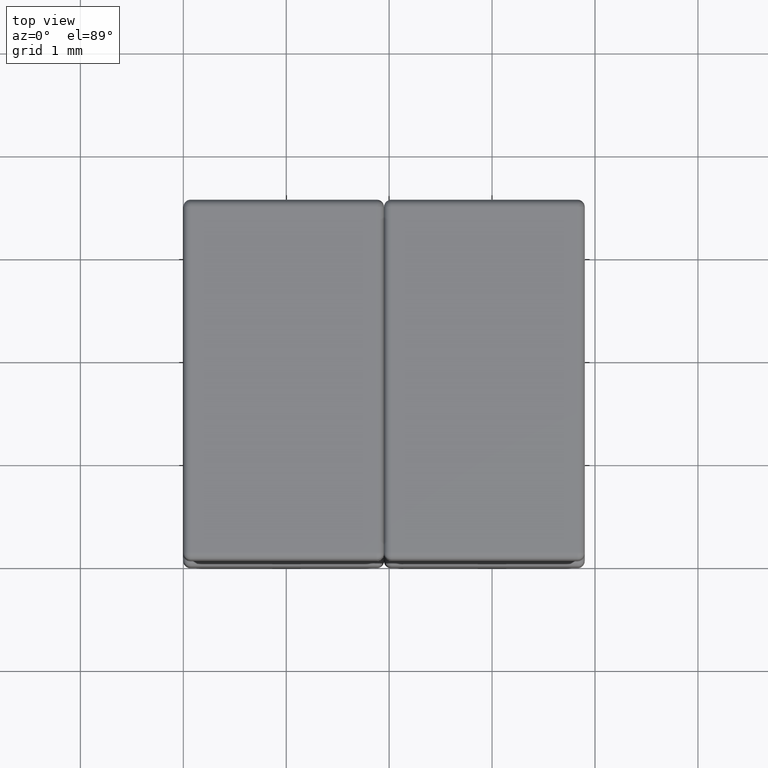
[diagram: clean part render]
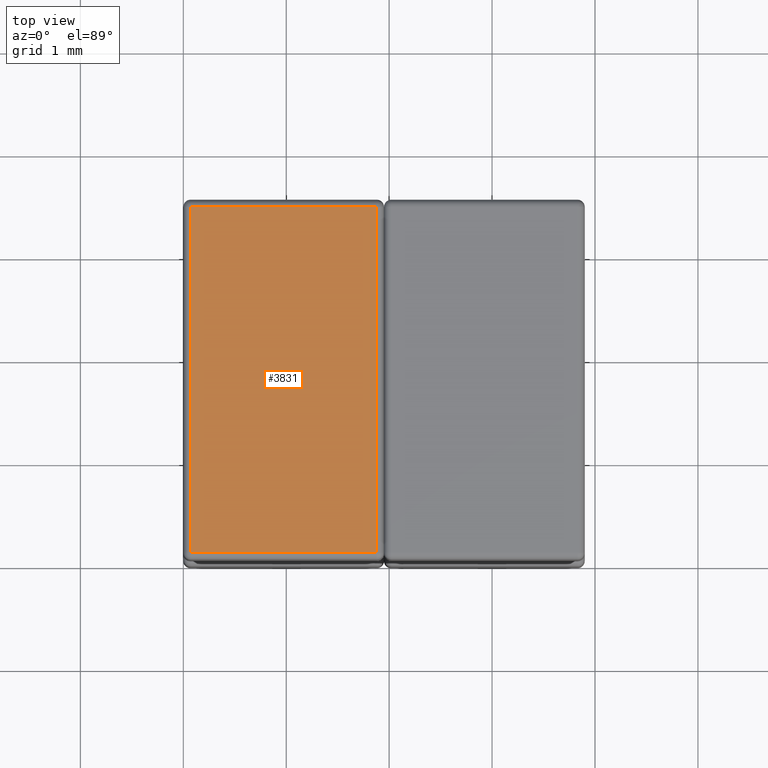
[diagram: same view with one face highlighted and labeled with its STEP entity id]
A machine part, top view. The second image highlights one B-rep face of the part: STEP entity #3831.
In plain terms, the highlighted planar face has unit normal (0, 0, -1).
Its self-contained STEP definition (entity closure, byte-faithful):
#84 = DIRECTION ( 'NONE',  ( 0.000000000000000000, 0.000000000000000000, -1.000000000000000000 ) ) ;
#129 = DIRECTION ( 'NONE',  ( 1.858632295689436102E-16, -1.000000000000000000, 0.000000000000000000 ) ) ;
#287 = AXIS2_PLACEMENT_3D ( 'NONE', #2720, #84, #868 ) ;
#469 = CARTESIAN_POINT ( 'NONE',  ( 1.949999999999999734, 0.07000000000000000666, 0.000000000000000000 ) ) ;
#510 = FACE_OUTER_BOUND ( 'NONE', #2864, .T. ) ;
#868 = DIRECTION ( 'NONE',  ( -1.000000000000000000, 0.000000000000000000, -0.000000000000000000 ) ) ;
#970 = VERTEX_POINT ( 'NONE', #2879 ) ;
#1831 = ORIENTED_EDGE ( 'NONE', *, *, #4821, .T. ) ;
#2029 = VECTOR ( 'NONE', #129, 1000.000000000000000 ) ;
#2317 = CARTESIAN_POINT ( 'NONE',  ( 1.879999999999999227, 3.429999999999999716, 0.000000000000000000 ) ) ;
#2720 = CARTESIAN_POINT ( 'NONE',  ( 0.000000000000000000, 0.000000000000000000, 0.000000000000000000 ) ) ;
#2864 = EDGE_LOOP ( 'NONE', ( #4407, #1831, #3794, #6740 ) ) ;
#2879 = CARTESIAN_POINT ( 'NONE',  ( 0.06999999999999999278, 0.07000000000000000666, 0.000000000000000000 ) ) ;
#3190 = DIRECTION ( 'NONE',  ( 1.000000000000000000, 0.000000000000000000, 0.000000000000000000 ) ) ;
#3649 = EDGE_CURVE ( 'NONE', #8468, #4921, #4444, .T. ) ;
#3794 = ORIENTED_EDGE ( 'NONE', *, *, #6920, .T. ) ;
#3827 = EDGE_CURVE ( 'NONE', #970, #8468, #6752, .T. ) ;
#3831 = ADVANCED_FACE ( 'NONE', ( #510 ), #5958, .F. ) ;
#4121 = VECTOR ( 'NONE', #5786, 1000.000000000000000 ) ;
#4308 = LINE ( 'NONE', #6224, #7577 ) ;
#4407 = ORIENTED_EDGE ( 'NONE', *, *, #3649, .T. ) ;
#4444 = LINE ( 'NONE', #8473, #4121 ) ;
#4821 = EDGE_CURVE ( 'NONE', #4921, #5249, #4308, .T. ) ;
#4921 = VERTEX_POINT ( 'NONE', #2317 ) ;
#5025 = CARTESIAN_POINT ( 'NONE',  ( 1.879999999999999671, 0.07000000000000000666, 0.000000000000000000 ) ) ;
#5249 = VERTEX_POINT ( 'NONE', #5687 ) ;
#5523 = DIRECTION ( 'NONE',  ( -1.000000000000000000, 0.000000000000000000, 0.000000000000000000 ) ) ;
#5687 = CARTESIAN_POINT ( 'NONE',  ( 0.06999999999999936828, 3.429999999999999716, 0.000000000000000000 ) ) ;
#5786 = DIRECTION ( 'NONE',  ( -1.239088197126290817E-16, 1.000000000000000000, 0.000000000000000000 ) ) ;
#5958 = PLANE ( 'NONE',  #287 ) ;
#6224 = CARTESIAN_POINT ( 'NONE',  ( -6.505213034913026604E-16, 3.429999999999999716, 0.000000000000000000 ) ) ;
#6740 = ORIENTED_EDGE ( 'NONE', *, *, #3827, .T. ) ;
#6752 = LINE ( 'NONE', #469, #6956 ) ;
#6920 = EDGE_CURVE ( 'NONE', #5249, #970, #7713, .T. ) ;
#6956 = VECTOR ( 'NONE', #3190, 1000.000000000000000 ) ;
#7020 = CARTESIAN_POINT ( 'NONE',  ( 0.07000000000000000666, 1.301042606982605475E-17, 0.000000000000000000 ) ) ;
#7577 = VECTOR ( 'NONE', #5523, 1000.000000000000000 ) ;
#7713 = LINE ( 'NONE', #7020, #2029 ) ;
#8468 = VERTEX_POINT ( 'NONE', #5025 ) ;
#8473 = CARTESIAN_POINT ( 'NONE',  ( 1.879999999999999227, 3.500000000000000000, 0.000000000000000000 ) ) ;